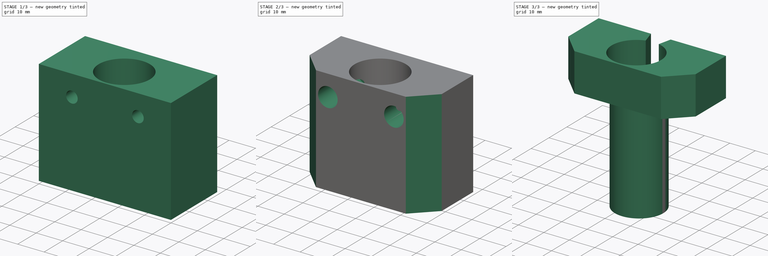
[diagram: build sequence overview — one tinted view per stage of 3, left to right]
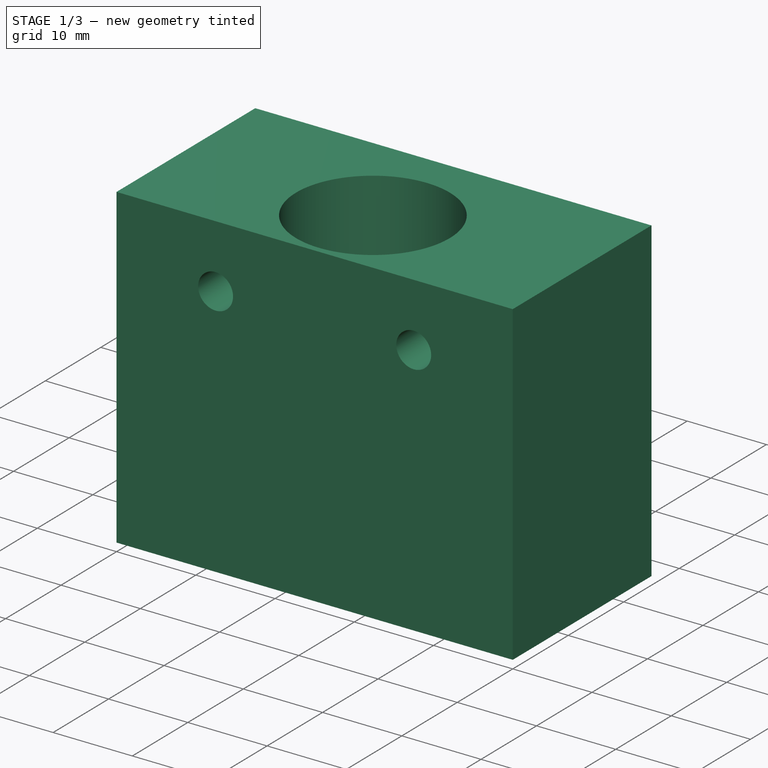
[diagram: stage 1 of 3 — iso view after this stage's code; geometry added in this stage tinted green]
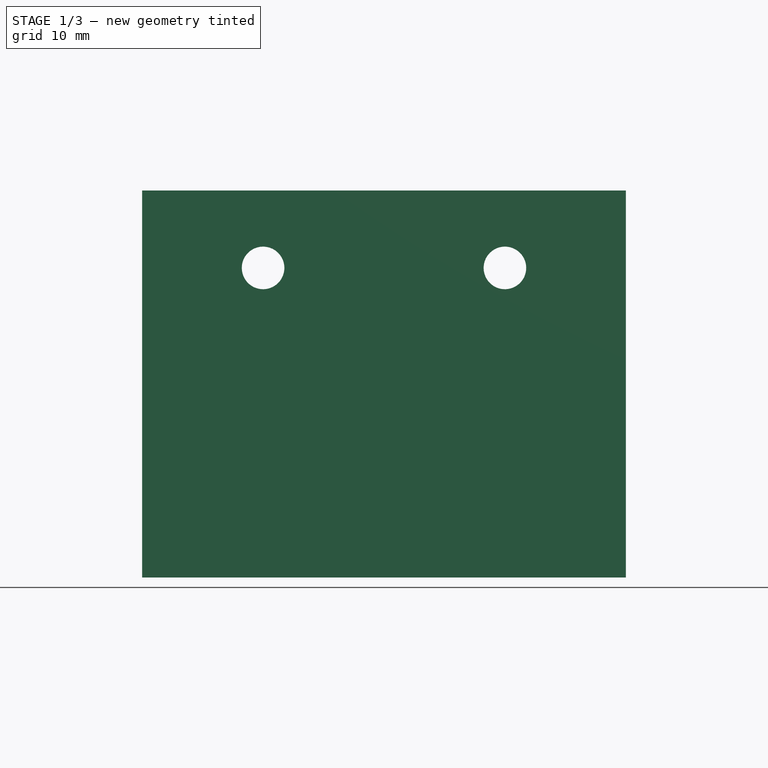
[diagram: stage 1 of 3 — front view after this stage's code; geometry added in this stage tinted green]
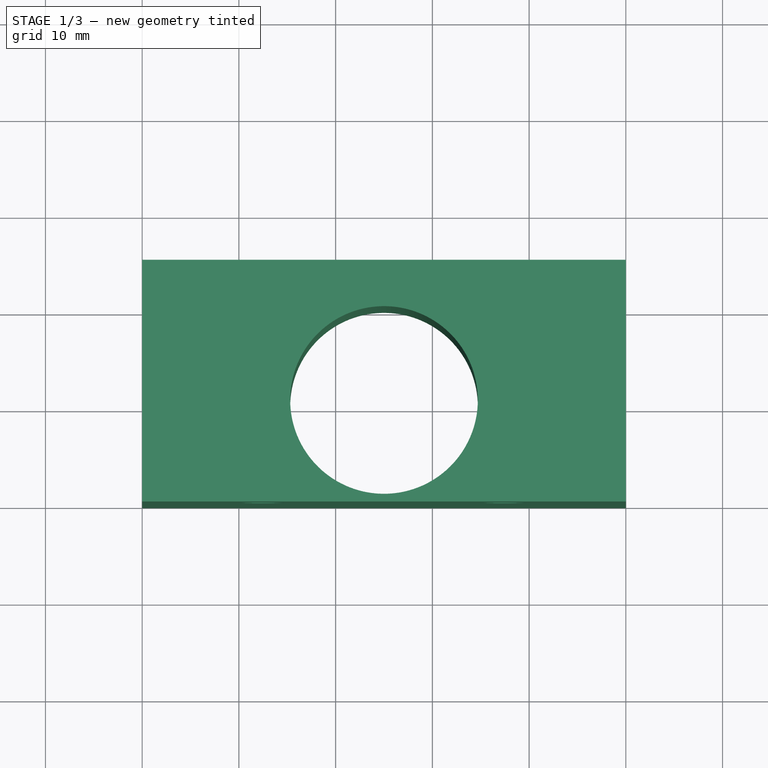
[diagram: stage 1 of 3 — top view after this stage's code; geometry added in this stage tinted green]
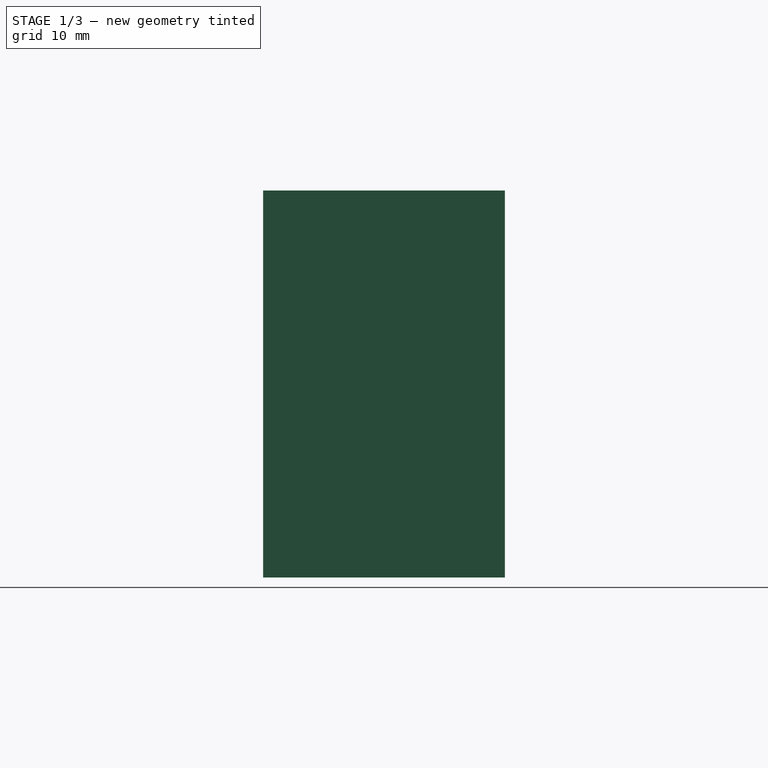
[diagram: stage 1 of 3 — right view after this stage's code; geometry added in this stage tinted green]
FCSTD DOCUMENT  (FreeCAD 0.16R4742 (Git))
Label: sujeccion-interruptor-meta
License: All rights reserved
LicenseURL: http://en.wikipedia.org/wiki/All_rights_reserved
objects: Sketcher::SketchObject×4, PartDesign::Pocket×4, Part::Box×1, Part::Cylinder×1, App::MeasureDistance×1, PartDesign::Chamfer×1, App::DocumentObjectGroup×1, Part::FeaturePython×1, Part::Extrusion×1
note: 17 computed .brp shape members not serialized (recipe doc carries the construction recipe); baked Part::Feature solids carry a one-line shape summary decoded from their .brp

FEATURE [Part::Box] Box  label="Cubo"
  Height = 40
  Length = 50
  Width = 25
FEATURE [Sketcher::SketchObject] Sketch
  ExternalGeometry = -> [Box]
  Placement = pos=(0,0,0) rot=(1,0,0;3.14159rad)
  Support = -> Box [Face5]
  sketch-geometry (3):
    g0: LineSegment [constr] StartX=50 StartY=-10.5 StartZ=0 EndX=25 EndY=-10.5 EndZ=0
    g1: LineSegment [constr] StartX=25 StartY=-10.5 StartZ=0 EndX=0 EndY=-10.5 EndZ=0
    g2: Circle CenterX=25 CenterY=-10.5 CenterZ=0 NormalX=0 NormalY=0 NormalZ=1 Radius=9.7
  constraints (9):
    c: Coincident(g0,g1)
    c: Equal(g1,g0)
    c: Parallel(g1,g0)
    c: Coincident(g2,g0)
    c: Radius(g2) = 9.7
    c: PointOnObject(g1,g-2)
    c: PointOnObject(g0,g-4)
    c: Horizontal(g1)
    c: Distance(g0,g-4) = 10.5
FEATURE [PartDesign::Pocket] Pocket
  Length = 5
  Sketch = -> Sketch
  Type = 1
FEATURE [Sketcher::SketchObject] Sketch001
  ExternalGeometry = -> [Pocket]
  Placement = pos=(0,25,0) rot=(0,0.707107,0.707107;3.14159rad)
  Support = -> Pocket [Face4]
  sketch-geometry (5):
    g0: LineSegment [constr] StartX=-50 StartY=32 StartZ=0 EndX=-37.5 EndY=32 EndZ=0
    g1: LineSegment [constr] StartX=-37.5 StartY=32 StartZ=0 EndX=-12.5 EndY=32 EndZ=0
    g2: LineSegment [constr] StartX=-12.5 StartY=32 StartZ=0 EndX=0 EndY=32 EndZ=0
    g3: Circle CenterX=-37.5 CenterY=32 CenterZ=0 NormalX=0 NormalY=0 NormalZ=1 Radius=2.2
    g4: Circle CenterX=-12.5 CenterY=32 CenterZ=0 NormalX=0 NormalY=0 NormalZ=1 Radius=2.2
  constraints (11):
    c: Horizontal(g0)
    c: Coincident(g0,g1)
    c: Horizontal(g1)
    c: Coincident(g1,g2)
    c: Horizontal(g2)
    c: Distance(g1) = 25
    c: Equal(g2,g0)
    c: Coincident(g3,g0)
    c: Coincident(g4,g1)
    c: Radius(g4) = 2.2
    c: Equal(g4,g3)
FEATURE [PartDesign::Pocket] Pocket001
  Length = 5
  Sketch = -> Sketch001
  Type = 1
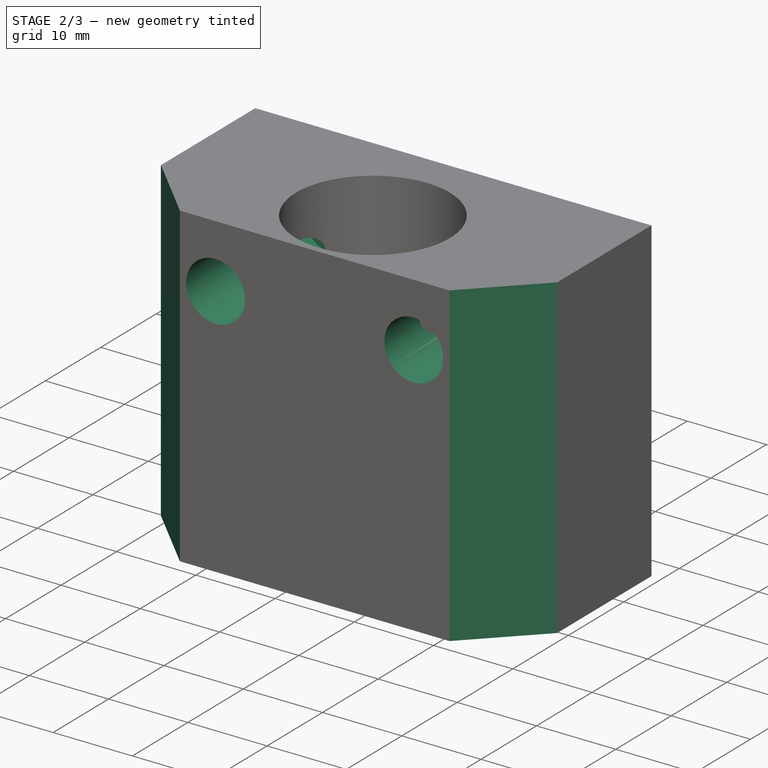
[diagram: stage 2 of 3 — iso view after this stage's code; geometry added in this stage tinted green]
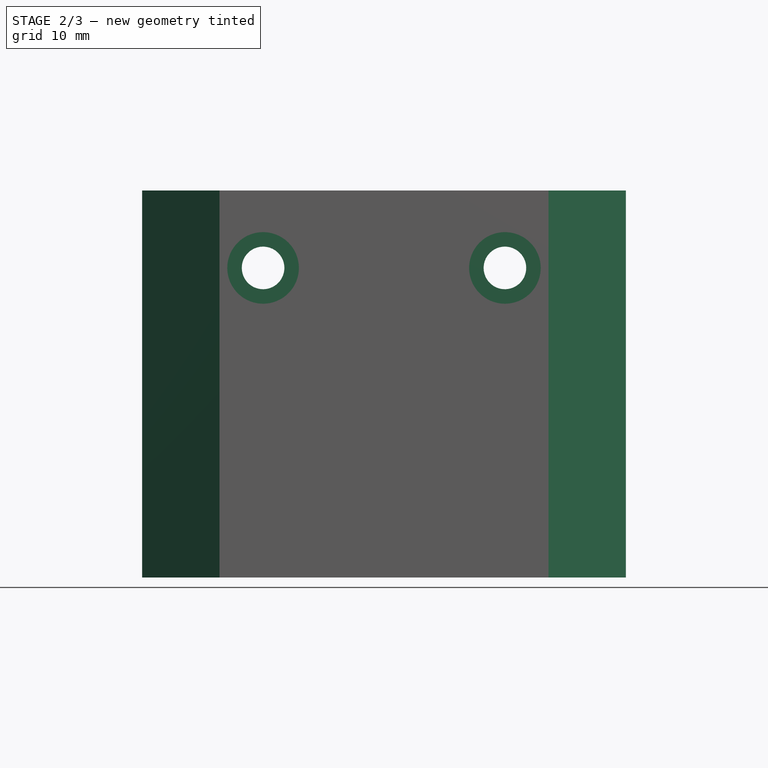
[diagram: stage 2 of 3 — front view after this stage's code; geometry added in this stage tinted green]
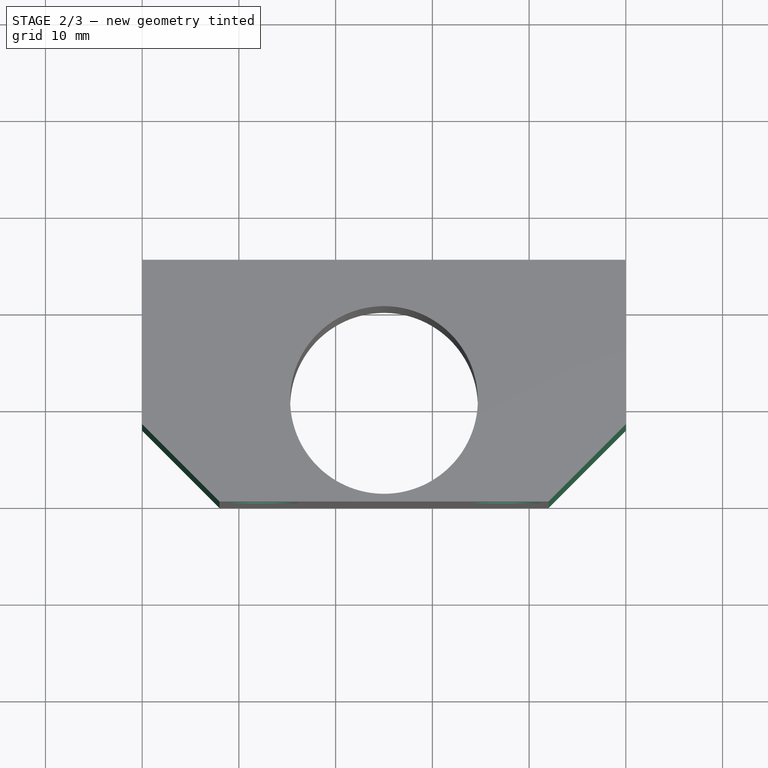
[diagram: stage 2 of 3 — top view after this stage's code; geometry added in this stage tinted green]
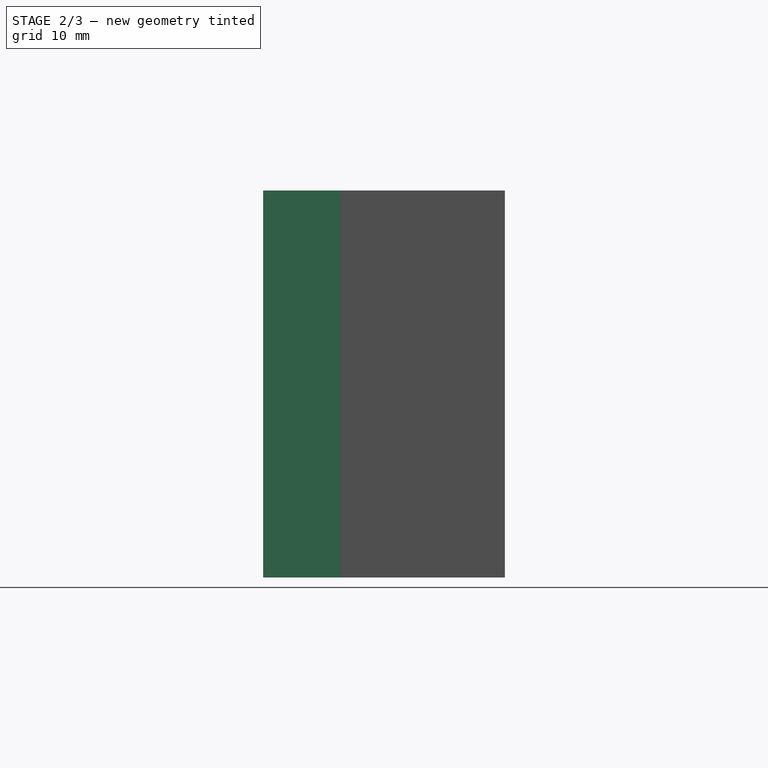
[diagram: stage 2 of 3 — right view after this stage's code; geometry added in this stage tinted green]
FEATURE [Sketcher::SketchObject] Sketch002
  ExternalGeometry = -> [Pocket001]
  Placement = pos=(0,0,0) rot=(1,0,0;1.5708rad)
  Support = -> Pocket001 [Face2]
  sketch-geometry (2):
    g0: Circle CenterX=12.5 CenterY=32 CenterZ=0 NormalX=0 NormalY=0 NormalZ=1 Radius=3.7
    g1: Circle CenterX=37.5 CenterY=32 CenterZ=0 NormalX=0 NormalY=0 NormalZ=1 Radius=3.7
  constraints (4):
    c: Coincident(g0,g-3)
    c: Coincident(g1,g-4)
    c: Radius(g1) = 3.7
    c: Equal(g1,g0)
FEATURE [App::MeasureDistance] Distance  label="Distance: 28.000"
  Distance = 28.0002
  P1 = (37.5,9.58399e-07,28)
  P2 = (37.4065,0,0)
FEATURE [PartDesign::Pocket] Pocket002
  Length = 21
  Sketch = -> Sketch002
  Type = 0
FEATURE [PartDesign::Chamfer] Chamfer
  Base = -> Pocket002 [Edge1,Edge6]
  Size = 8
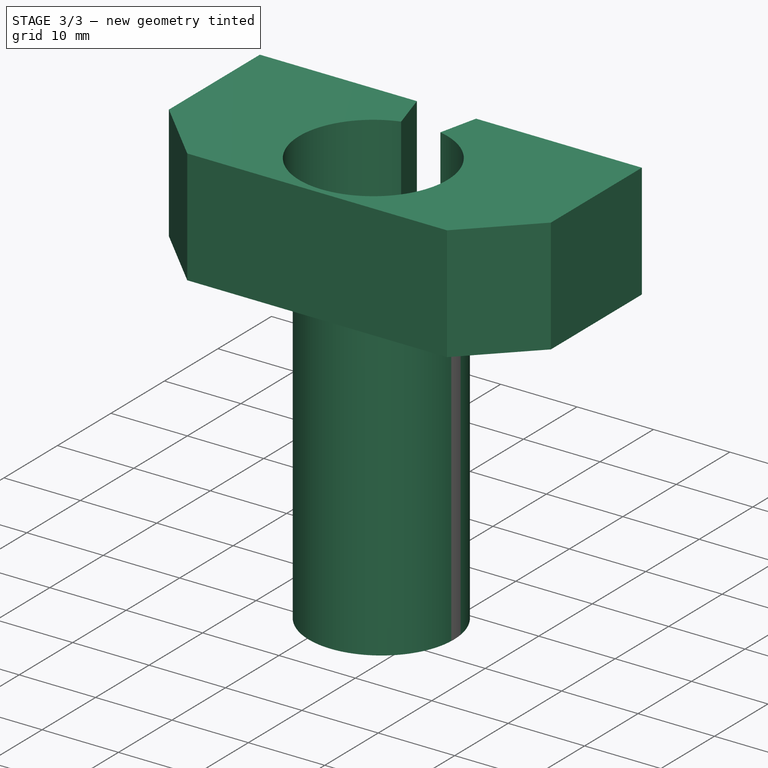
[diagram: stage 3 of 3 — iso view after this stage's code; geometry added in this stage tinted green]
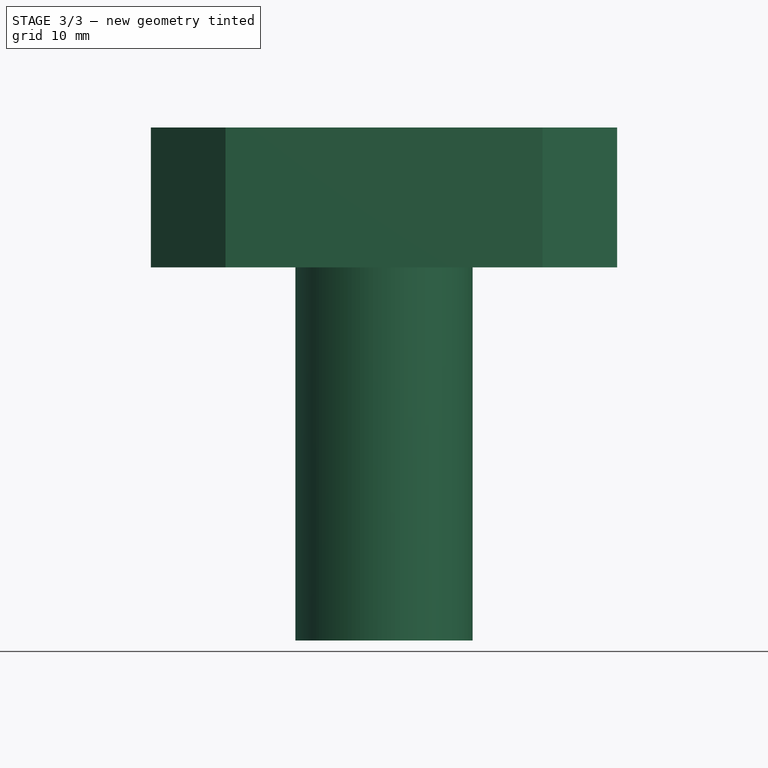
[diagram: stage 3 of 3 — front view after this stage's code; geometry added in this stage tinted green]
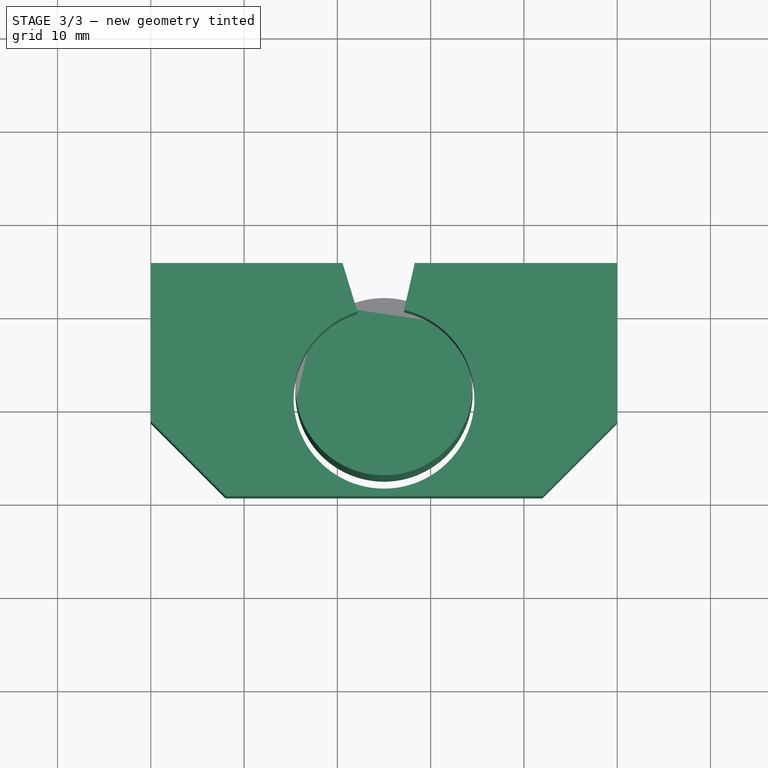
[diagram: stage 3 of 3 — top view after this stage's code; geometry added in this stage tinted green]
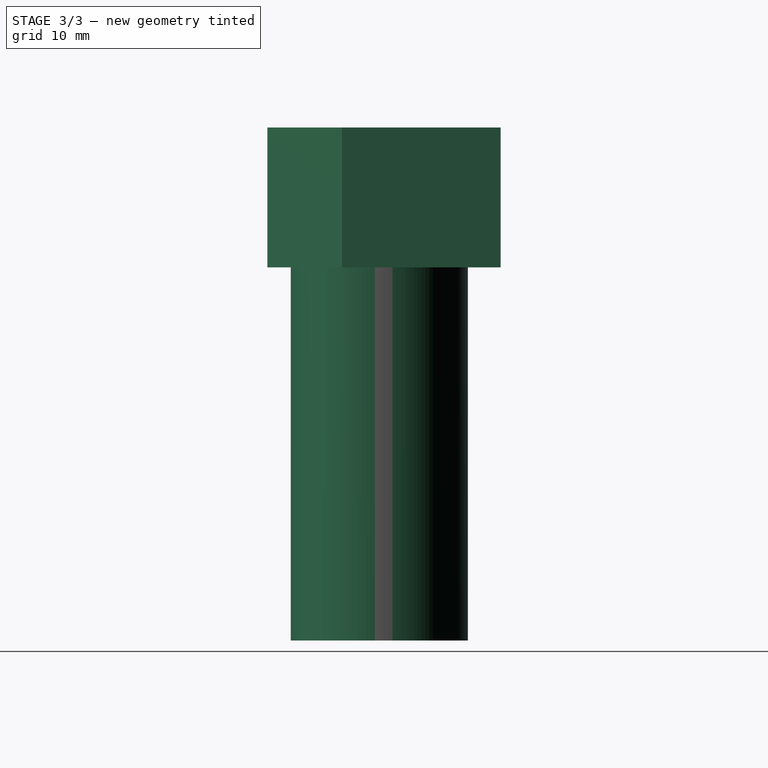
[diagram: stage 3 of 3 — right view after this stage's code; geometry added in this stage tinted green]
FEATURE [Part::Cylinder] Cylinder  label="Cilindro"
  Angle = 360
  Height = 40
  Placement = pos=(25,12,0) rot=(0,0,1;0rad)
  Radius = 9.5
FEATURE [Sketcher::SketchObject] Sketch003
  ExternalGeometry = -> [Chamfer]
  Placement = pos=(0,0,40) rot=(0,0,1;0rad)
  Support = -> Chamfer [Face2]
  sketch-geometry (6):
    g0: LineSegment StartX=20.5519 StartY=25 StartZ=0 EndX=28.2988 EndY=25 EndZ=0
    g1: LineSegment StartX=28.2988 StartY=25 StartZ=0 EndX=27.1518 EndY=19.9583 EndZ=0
    g2: LineSegment StartX=20.5519 StartY=25 StartZ=0 EndX=22.1552 EndY=19.7735 EndZ=0
    g3: ArcOfCircle CenterX=25 CenterY=10.5 CenterZ=0 NormalX=0 NormalY=0 NormalZ=1 Radius=9.7 StartAngle=1.3471 EndAngle=1.86845
    g4: LineSegment [constr] StartX=27.1518 StartY=19.9583 StartZ=0 EndX=25 EndY=10.5 EndZ=0
    g5: LineSegment [constr] StartX=22.1552 StartY=19.7735 StartZ=0 EndX=25 EndY=10.5 EndZ=0
  constraints (17):
    c: PointOnObject(g0,g-3)
    c: PointOnObject(g0,g-3)
    c: Coincident(g0,g1)
    c: PointOnObject(g1,g-4)
    c: Coincident(g2,g0)
    c: PointOnObject(g2,g-4)
    c: Coincident(g3,g-4)
    c: Coincident(g3,g2)
    c: Coincident(g3,g1)
    c: Coincident(g4,g1)
    c: Coincident(g4,g3)
    c: Coincident(g5,g2)
    c: Coincident(g5,g3)
    c: Equal(g4,g5)
    c: Parallel(g1,g4)
    c: Parallel(g5,g2)
    c: Distance(g1,g2) = 5
FEATURE [PartDesign::Pocket] Pocket003
  Length = 5
  Sketch = -> Sketch003
  Type = 1
FEATURE [App::DocumentObjectGroup] Grupo
  Group = -> [Box,Pocket,Pocket001,Pocket002,Chamfer,Pocket003]
FEATURE [Part::FeaturePython] Facebinder  # WARN: FeaturePython — macro-defined, semantics opaque (R4)
  Faces = -> [Pocket003]
FEATURE [Part::Extrusion] Extrude
  Base = -> Facebinder
  Dir = (0,0,15)
  Solid = false
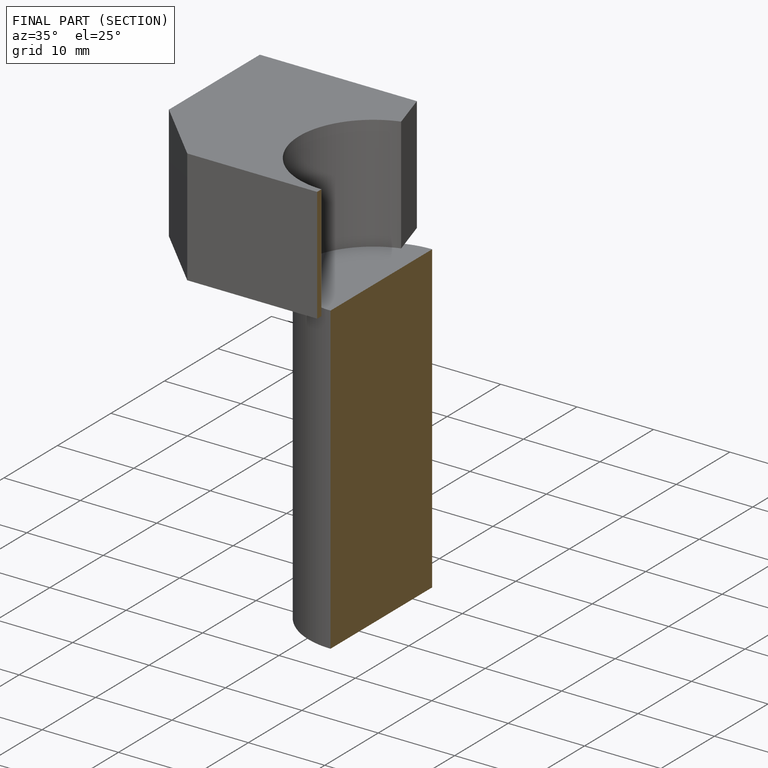
[diagram: finished part — half-section view (interior)]
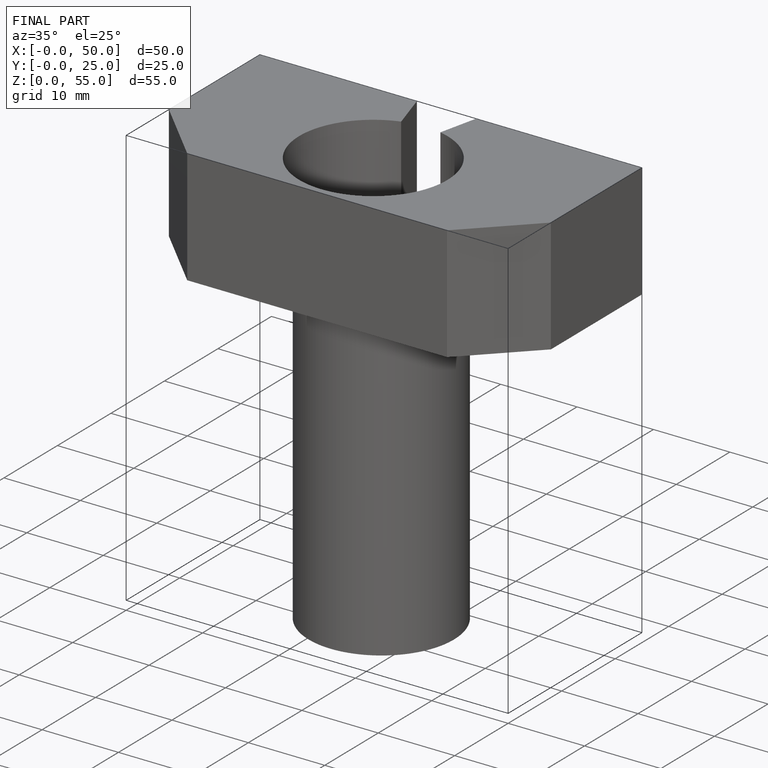
[diagram: finished part — iso view with bounding-box wireframe]
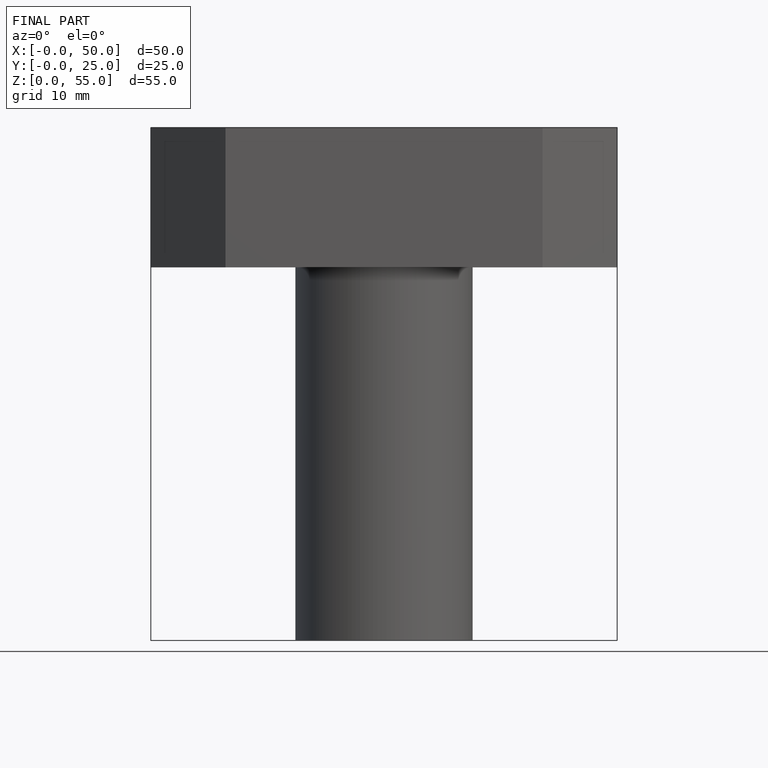
[diagram: finished part — front view with bounding-box wireframe]
